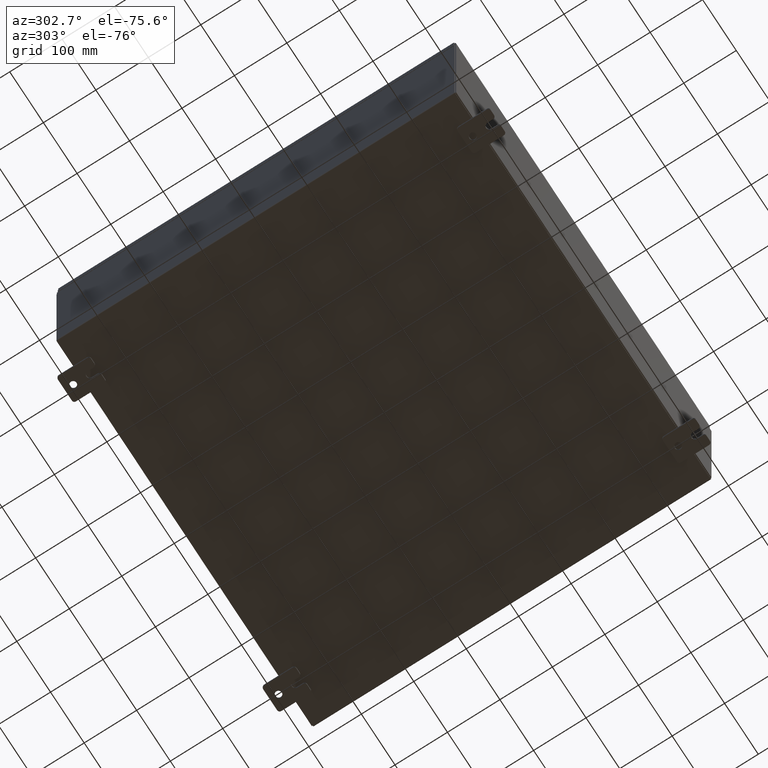
[diagram: clean part render]
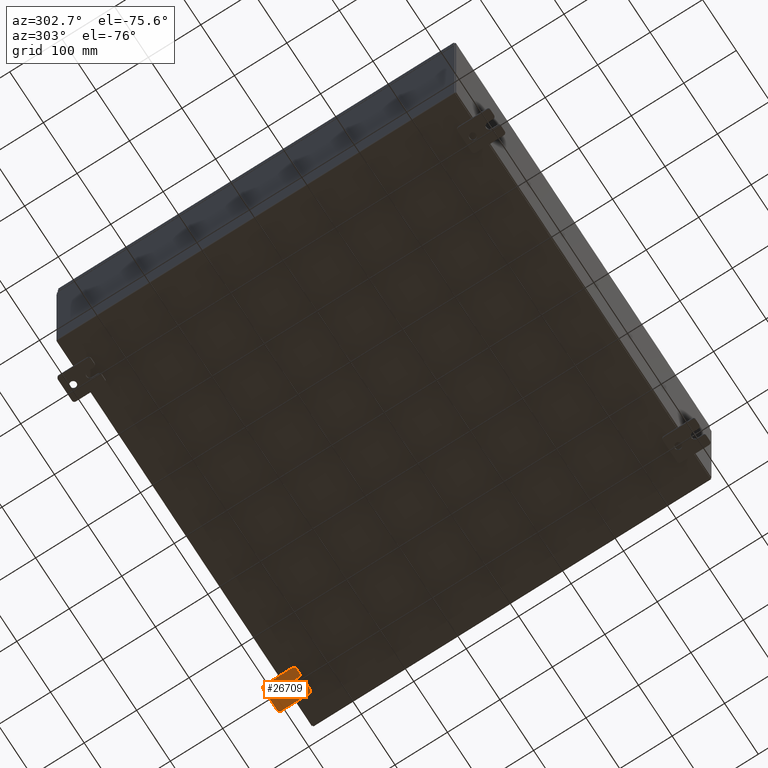
[diagram: same view with one face highlighted and labeled with its STEP entity id]
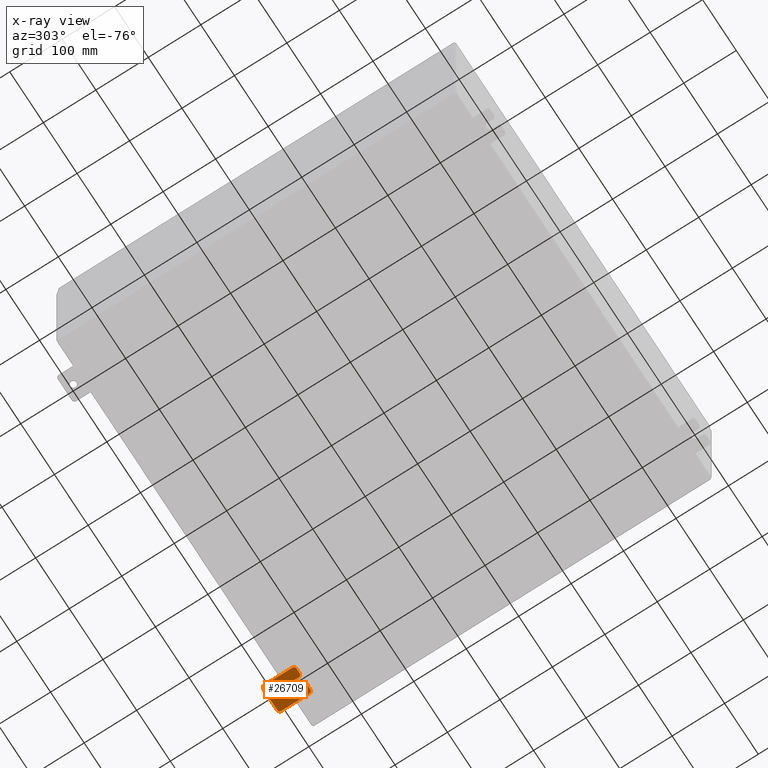
[diagram: x-ray of the same camera — body ghosted, the highlighted face saturated]
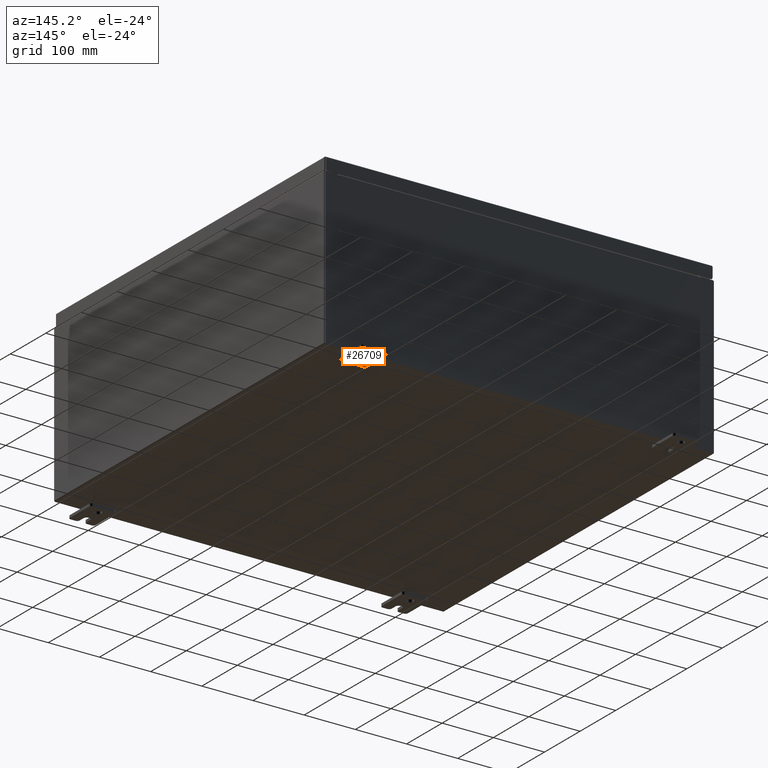
[diagram: same view with one face highlighted and labeled with its STEP entity id]
A machine part, auxiliary view. The second image highlights one B-rep face of the part: STEP entity #26709.
The next image is the same camera in x-ray: the body ghosted, the highlighted face saturated — about 0% of this face is hidden behind the body in this view.
A second angle (auxiliary view) of the same face is appended — the face is thin or edge-on in the first view.
In plain terms, the highlighted planar face has unit normal (0, 0, 1).
Its self-contained STEP definition (entity closure, byte-faithful):
#759 = CARTESIAN_POINT ( 'NONE',  ( -0.1879999999999997800, 1.249999999999997300, 0.8099999999999935000 ) ) ;
#899 = VERTEX_POINT ( 'NONE', #38264 ) ;
#1385 = ORIENTED_EDGE ( 'NONE', *, *, #44613, .T. ) ;
#1409 = VERTEX_POINT ( 'NONE', #759 ) ;
#2451 = LINE ( 'NONE', #64893, #32505 ) ;
#2819 = DIRECTION ( 'NONE',  ( -1.000000000000000000, -0.0000000000000000000, 0.0000000000000000000 ) ) ;
#3173 = DIRECTION ( 'NONE',  ( -1.000000000000000000, -0.0000000000000000000, 0.0000000000000000000 ) ) ;
#3365 = VECTOR ( 'NONE', #41085, 39.37007874015748100 ) ;
#3674 = ORIENTED_EDGE ( 'NONE', *, *, #18623, .F. ) ;
#5020 = DIRECTION ( 'NONE',  ( 6.556435184794182400E-016, 1.000000000000000000, 0.0000000000000000000 ) ) ;
#5469 = CARTESIAN_POINT ( 'NONE',  ( -0.1879999999999997800, 1.059999999999993600, -0.8100000000000089400 ) ) ;
#6151 = FACE_BOUND ( 'NONE', #26875, .T. ) ;
#6306 = CIRCLE ( 'NONE', #47002, 0.2499999999999999200 ) ;
#6521 = CARTESIAN_POINT ( 'NONE',  ( -0.1879999999999997800, -1.060000000000001200, 0.9999999999999988900 ) ) ;
#6737 = CARTESIAN_POINT ( 'NONE',  ( -0.1880000000000010000, 0.6249999999999992200, -7.703811342100550500E-020 ) ) ;
#6849 = CARTESIAN_POINT ( 'NONE',  ( -0.1879999999999997800, 1.249999999999994700, -0.8100000000000092700 ) ) ;
#7369 = CARTESIAN_POINT ( 'NONE',  ( -0.1880000000000010000, 0.6249999999999992200, 0.2499999999999999200 ) ) ;
#7982 = LINE ( 'NONE', #55410, #34858 ) ;
#9231 = AXIS2_PLACEMENT_3D ( 'NONE', #34745, #19505, #44915 ) ;
#10182 = CIRCLE ( 'NONE', #39001, 0.1900000000000011400 ) ;
#10545 = DIRECTION ( 'NONE',  ( 0.0000000000000000000, 0.0000000000000000000, -1.000000000000000000 ) ) ;
#10771 = AXIS2_PLACEMENT_3D ( 'NONE', #33428, #3173, #38507 ) ;
#11643 = EDGE_CURVE ( 'NONE', #23403, #20279, #26369, .T. ) ;
#11807 = DIRECTION ( 'NONE',  ( 0.0000000000000000000, 0.0000000000000000000, -1.000000000000000000 ) ) ;
#11838 = VERTEX_POINT ( 'NONE', #55555 ) ;
#12252 = VERTEX_POINT ( 'NONE', #48237 ) ;
#12788 = CARTESIAN_POINT ( 'NONE',  ( -0.1880000000000004700, -1.060000000000003400, -0.2499999999999994400 ) ) ;
#12918 = CARTESIAN_POINT ( 'NONE',  ( -0.1879999999999997800, -1.250000000000005600, -1.000000000000006200 ) ) ;
#13329 = AXIS2_PLACEMENT_3D ( 'NONE', #17847, #53223, #22888 ) ;
#15560 = VECTOR ( 'NONE', #59713, 39.37007874015748100 ) ;
#15914 = CARTESIAN_POINT ( 'NONE',  ( -0.1880000000000001900, -0.6249999999999992200, 6.829619984160658000E-017 ) ) ;
#16136 = CIRCLE ( 'NONE', #53867, 0.2499999999999999200 ) ;
#16466 = EDGE_CURVE ( 'NONE', #39566, #36900, #41546, .T. ) ;
#17442 = ORIENTED_EDGE ( 'NONE', *, *, #45084, .F. ) ;
#17667 = AXIS2_PLACEMENT_3D ( 'NONE', #54459, #32384, #33231 ) ;
#17828 = VERTEX_POINT ( 'NONE', #6521 ) ;
#17847 = CARTESIAN_POINT ( 'NONE',  ( -0.1880000000000010000, 0.6249999999999992200, -7.703811342100550500E-020 ) ) ;
#17889 = CARTESIAN_POINT ( 'NONE',  ( -0.1879999999999997800, -1.250000000000004700, -0.4400000000000002200 ) ) ;
#18403 = LINE ( 'NONE', #20776, #3365 ) ;
#18623 = EDGE_CURVE ( 'NONE', #53528, #23476, #16136, .T. ) ;
#19505 = DIRECTION ( 'NONE',  ( 1.000000000000000000, 0.0000000000000000000, -0.0000000000000000000 ) ) ;
#19917 = EDGE_CURVE ( 'NONE', #39566, #1409, #18403, .T. ) ;
#20279 = VERTEX_POINT ( 'NONE', #12788 ) ;
#20566 = VECTOR ( 'NONE', #27208, 39.37007874015748100 ) ;
#20703 = CARTESIAN_POINT ( 'NONE',  ( -0.1879999999999997800, -1.250000000000002400, 0.8099999999999980500 ) ) ;
#20776 = CARTESIAN_POINT ( 'NONE',  ( -0.1879999999999997800, 1.249999999999994200, -1.000000000000010400 ) ) ;
#20996 = DIRECTION ( 'NONE',  ( -6.829619984160660000E-016, -1.000000000000000000, 0.0000000000000000000 ) ) ;
#22027 = CARTESIAN_POINT ( 'NONE',  ( -0.1879999999999997800, -1.250000000000005300, -0.8100000000000047200 ) ) ;
#22400 = VERTEX_POINT ( 'NONE', #40268 ) ;
#22888 = DIRECTION ( 'NONE',  ( 0.0000000000000000000, 0.0000000000000000000, -1.000000000000000000 ) ) ;
#23373 = EDGE_CURVE ( 'NONE', #37007, #12252, #33962, .T. ) ;
#23403 = VERTEX_POINT ( 'NONE', #17889 ) ;
#23476 = VERTEX_POINT ( 'NONE', #63976 ) ;
#23709 = DIRECTION ( 'NONE',  ( -1.000000000000000000, -0.0000000000000000000, 0.0000000000000000000 ) ) ;
#25047 = EDGE_CURVE ( 'NONE', #899, #36552, #43365, .T. ) ;
#25777 = ORIENTED_EDGE ( 'NONE', *, *, #39157, .T. ) ;
#26369 = CIRCLE ( 'NONE', #17667, 0.1900000000000011100 ) ;
#26709 = ADVANCED_FACE ( 'NONE', ( #6151, #49630 ), #39844, .F. ) ;
#26875 = EDGE_LOOP ( 'NONE', ( #57498, #45078 ) ) ;
#27208 = DIRECTION ( 'NONE',  ( 0.0000000000000000000, -1.639108796198553600E-015, -1.000000000000000000 ) ) ;
#27831 = LINE ( 'NONE', #29243, #56372 ) ;
#28377 = ORIENTED_EDGE ( 'NONE', *, *, #23373, .F. ) ;
#28672 = CARTESIAN_POINT ( 'NONE',  ( -0.1879999999999997800, -1.060000000000001600, 0.8099999999999978300 ) ) ;
#28967 = LINE ( 'NONE', #65117, #15560 ) ;
#29243 = CARTESIAN_POINT ( 'NONE',  ( -0.1879999999999997800, 1.249999999999997600, 0.9999999999999951200 ) ) ;
#30067 = CARTESIAN_POINT ( 'NONE',  ( -0.1879999999999997800, 1.059999999999993400, -1.000000000000010000 ) ) ;
#31795 = VECTOR ( 'NONE', #53405, 39.37007874015748100 ) ;
#32113 = ORIENTED_EDGE ( 'NONE', *, *, #25047, .T. ) ;
#32384 = DIRECTION ( 'NONE',  ( -1.000000000000000000, -0.0000000000000000000, 0.0000000000000000000 ) ) ;
#32505 = VECTOR ( 'NONE', #54625, 39.37007874015748100 ) ;
#32657 = EDGE_CURVE ( 'NONE', #43758, #22400, #34206, .T. ) ;
#33077 = CARTESIAN_POINT ( 'NONE',  ( -0.1879999999999997800, -1.060000000000004100, -0.8100000000000050500 ) ) ;
#33231 = DIRECTION ( 'NONE',  ( 0.0000000000000000000, 0.0000000000000000000, -1.000000000000000000 ) ) ;
#33428 = CARTESIAN_POINT ( 'NONE',  ( -0.1879999999999997800, 1.059999999999996300, 0.8099999999999938400 ) ) ;
#33719 = DIRECTION ( 'NONE',  ( 0.0000000000000000000, 7.189073667537492800E-016, -1.000000000000000000 ) ) ;
#33962 = LINE ( 'NONE', #57511, #20566 ) ;
#34206 = CIRCLE ( 'NONE', #13329, 0.2499999999999999200 ) ;
#34293 = ORIENTED_EDGE ( 'NONE', *, *, #11643, .T. ) ;
#34400 = EDGE_CURVE ( 'NONE', #23403, #36552, #2451, .T. ) ;
#34745 = CARTESIAN_POINT ( 'NONE',  ( -0.1879999999999997800, 0.0000000000000000000, 0.0000000000000000000 ) ) ;
#34790 = ORIENTED_EDGE ( 'NONE', *, *, #51685, .T. ) ;
#34858 = VECTOR ( 'NONE', #5020, 39.37007874015748100 ) ;
#36552 = VERTEX_POINT ( 'NONE', #22027 ) ;
#36900 = VERTEX_POINT ( 'NONE', #30067 ) ;
#37007 = VERTEX_POINT ( 'NONE', #20703 ) ;
#37513 = ORIENTED_EDGE ( 'NONE', *, *, #41432, .F. ) ;
#38184 = DIRECTION ( 'NONE',  ( 0.0000000000000000000, 0.0000000000000000000, -1.000000000000000000 ) ) ;
#38264 = CARTESIAN_POINT ( 'NONE',  ( -0.1879999999999997800, -1.060000000000004500, -1.000000000000006400 ) ) ;
#38507 = DIRECTION ( 'NONE',  ( 0.0000000000000000000, 0.0000000000000000000, -1.000000000000000000 ) ) ;
#39001 = AXIS2_PLACEMENT_3D ( 'NONE', #54059, #23709, #59152 ) ;
#39157 = EDGE_CURVE ( 'NONE', #11838, #12252, #10182, .T. ) ;
#39566 = VERTEX_POINT ( 'NONE', #6849 ) ;
#39844 = PLANE ( 'NONE',  #9231 ) ;
#40268 = CARTESIAN_POINT ( 'NONE',  ( -0.1880000000000010000, 0.6249999999999992200, -0.2499999999999999200 ) ) ;
#40781 = DIRECTION ( 'NONE',  ( -1.000000000000000000, -0.0000000000000000000, 0.0000000000000000000 ) ) ;
#41085 = DIRECTION ( 'NONE',  ( 0.0000000000000000000, 1.639108796198553600E-015, 1.000000000000000000 ) ) ;
#41337 = CIRCLE ( 'NONE', #64321, 0.1900000000000011100 ) ;
#41432 = EDGE_CURVE ( 'NONE', #23476, #20279, #28967, .T. ) ;
#41546 = CIRCLE ( 'NONE', #64945, 0.1900000000000011100 ) ;
#41652 = CARTESIAN_POINT ( 'NONE',  ( -0.1880000000000001900, -0.6249999999999992200, 0.2500000000000005000 ) ) ;
#42067 = DIRECTION ( 'NONE',  ( 1.000000000000000000, -0.0000000000000000000, -5.163192708025532000E-017 ) ) ;
#43365 = CIRCLE ( 'NONE', #56244, 0.1900000000000011100 ) ;
#43758 = VERTEX_POINT ( 'NONE', #7369 ) ;
#44351 = ORIENTED_EDGE ( 'NONE', *, *, #19917, .F. ) ;
#44613 = EDGE_CURVE ( 'NONE', #37007, #17828, #41337, .T. ) ;
#44915 = DIRECTION ( 'NONE',  ( -0.0000000000000000000, 0.0000000000000000000, -1.000000000000000000 ) ) ;
#45078 = ORIENTED_EDGE ( 'NONE', *, *, #32657, .T. ) ;
#45084 = EDGE_CURVE ( 'NONE', #899, #36900, #57192, .T. ) ;
#46790 = EDGE_CURVE ( 'NONE', #11838, #53528, #7982, .T. ) ;
#47002 = AXIS2_PLACEMENT_3D ( 'NONE', #6737, #42067, #11807 ) ;
#48237 = CARTESIAN_POINT ( 'NONE',  ( -0.1879999999999997800, -1.250000000000003100, 0.4400000000000020000 ) ) ;
#48673 = EDGE_CURVE ( 'NONE', #22400, #43758, #6306, .T. ) ;
#48918 = EDGE_LOOP ( 'NONE', ( #28377, #1385, #65738, #34790, #44351, #59469, #17442, #32113, #59126, #34293, #37513, #3674, #59896, #25777 ) ) ;
#49630 = FACE_OUTER_BOUND ( 'NONE', #48918, .T. ) ;
#51245 = VERTEX_POINT ( 'NONE', #65665 ) ;
#51285 = DIRECTION ( 'NONE',  ( -1.000000000000000000, 6.523827964459549700E-016, 5.163192708025532000E-017 ) ) ;
#51685 = EDGE_CURVE ( 'NONE', #51245, #1409, #52084, .T. ) ;
#52084 = CIRCLE ( 'NONE', #10771, 0.1900000000000011100 ) ;
#53223 = DIRECTION ( 'NONE',  ( 1.000000000000000000, -0.0000000000000000000, -5.163192708025532000E-017 ) ) ;
#53405 = DIRECTION ( 'NONE',  ( 0.0000000000000000000, 1.000000000000000000, -1.639108796198558100E-015 ) ) ;
#53528 = VERTEX_POINT ( 'NONE', #41652 ) ;
#53867 = AXIS2_PLACEMENT_3D ( 'NONE', #15914, #51285, #20996 ) ;
#54059 = CARTESIAN_POINT ( 'NONE',  ( -0.1879999999999997800, -1.060000000000002100, 0.4400000000000016700 ) ) ;
#54459 = CARTESIAN_POINT ( 'NONE',  ( -0.1879999999999997800, -1.060000000000003400, -0.4400000000000005000 ) ) ;
#54625 = DIRECTION ( 'NONE',  ( 0.0000000000000000000, -1.639108796198553600E-015, -1.000000000000000000 ) ) ;
#55410 = CARTESIAN_POINT ( 'NONE',  ( -0.1880000000000005800, -1.250000000000003800, 0.2500000000000005000 ) ) ;
#55555 = CARTESIAN_POINT ( 'NONE',  ( -0.1880000000000004700, -1.060000000000002100, 0.2500000000000005000 ) ) ;
#56244 = AXIS2_PLACEMENT_3D ( 'NONE', #33077, #2819, #38184 ) ;
#56372 = VECTOR ( 'NONE', #64767, 39.37007874015748100 ) ;
#57192 = LINE ( 'NONE', #12918, #31795 ) ;
#57498 = ORIENTED_EDGE ( 'NONE', *, *, #48673, .T. ) ;
#57511 = CARTESIAN_POINT ( 'NONE',  ( -0.1879999999999997800, -1.250000000000002200, 0.9999999999999992200 ) ) ;
#58215 = EDGE_CURVE ( 'NONE', #51245, #17828, #27831, .T. ) ;
#59126 = ORIENTED_EDGE ( 'NONE', *, *, #34400, .F. ) ;
#59152 = DIRECTION ( 'NONE',  ( 0.0000000000000000000, 0.0000000000000000000, -1.000000000000000000 ) ) ;
#59469 = ORIENTED_EDGE ( 'NONE', *, *, #16466, .T. ) ;
#59713 = DIRECTION ( 'NONE',  ( -6.556435184794182400E-016, -1.000000000000000000, -1.639108796198545600E-016 ) ) ;
#59896 = ORIENTED_EDGE ( 'NONE', *, *, #46790, .F. ) ;
#63976 = CARTESIAN_POINT ( 'NONE',  ( -0.1880000000000001900, -0.6249999999999992200, -0.2499999999999998600 ) ) ;
#64183 = DIRECTION ( 'NONE',  ( -1.000000000000000000, -0.0000000000000000000, 0.0000000000000000000 ) ) ;
#64321 = AXIS2_PLACEMENT_3D ( 'NONE', #28672, #64183, #33719 ) ;
#64767 = DIRECTION ( 'NONE',  ( 0.0000000000000000000, -1.000000000000000000, 1.639108796198558100E-015 ) ) ;
#64893 = CARTESIAN_POINT ( 'NONE',  ( -0.1879999999999997800, -1.250000000000002200, 0.9999999999999992200 ) ) ;
#64945 = AXIS2_PLACEMENT_3D ( 'NONE', #5469, #40781, #10545 ) ;
#65117 = CARTESIAN_POINT ( 'NONE',  ( -0.1880000000000001900, -0.6249999999999992200, -0.2499999999999993900 ) ) ;
#65665 = CARTESIAN_POINT ( 'NONE',  ( -0.1879999999999997800, 1.059999999999996500, 0.9999999999999953400 ) ) ;
#65738 = ORIENTED_EDGE ( 'NONE', *, *, #58215, .F. ) ;